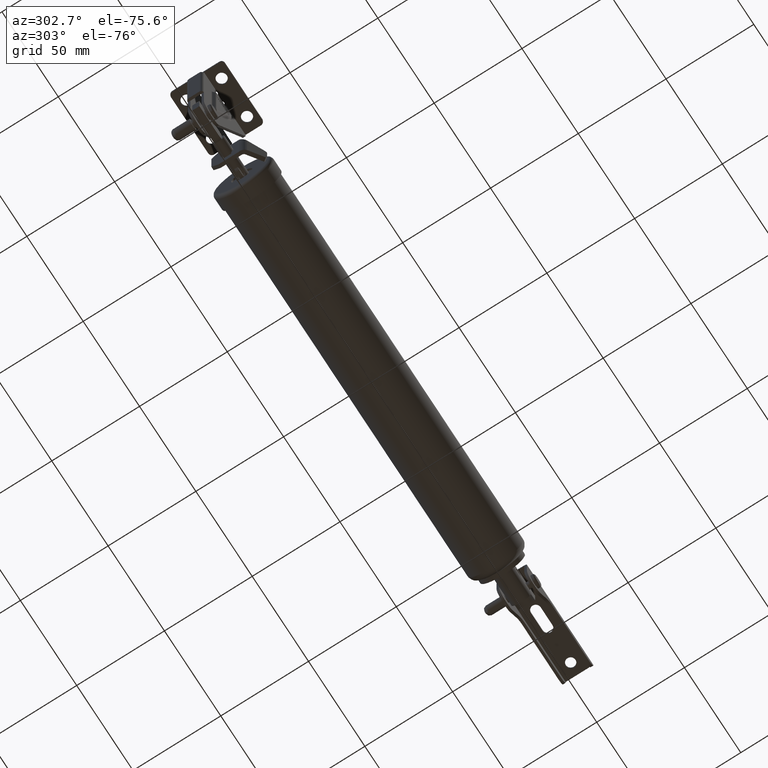
[diagram: clean part render]
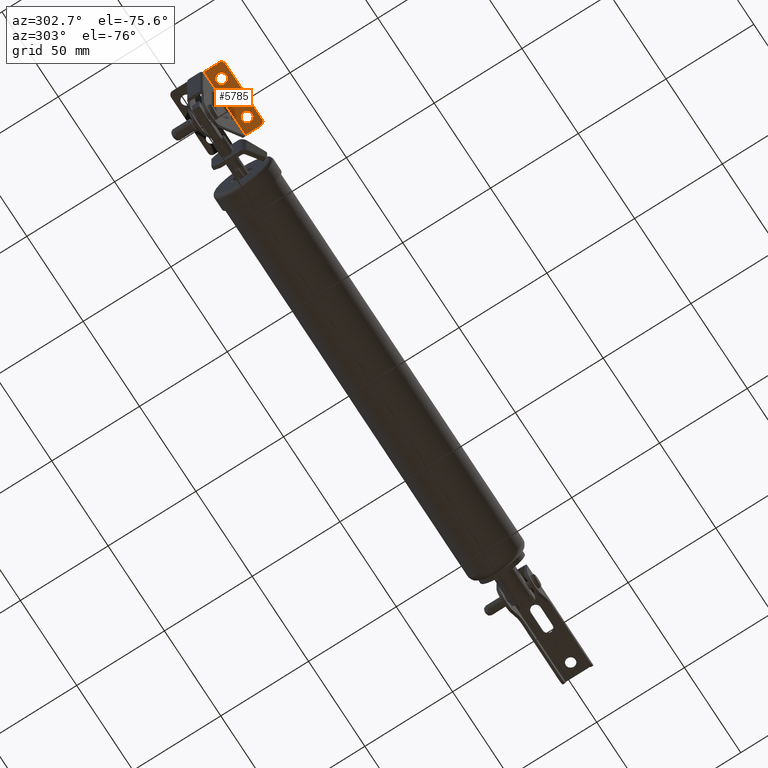
[diagram: same view with one face highlighted and labeled with its STEP entity id]
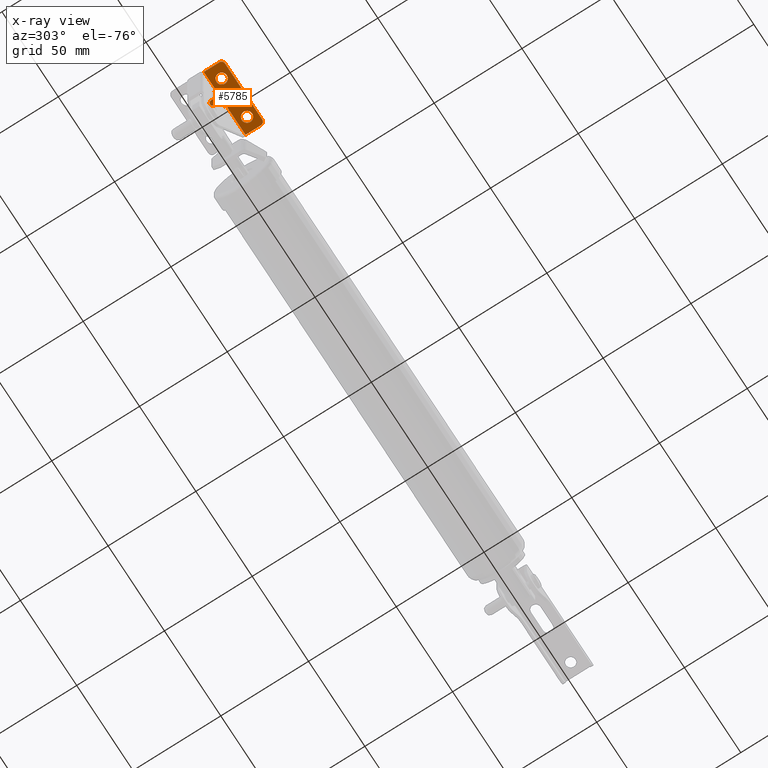
[diagram: x-ray of the same camera — body ghosted, the highlighted face saturated]
A machine part, auxiliary view. The second image highlights one B-rep face of the part: STEP entity #5785.
The next image is the same camera in x-ray: the body ghosted, the highlighted face saturated — about 1% of this face is hidden behind the body in this view.
In plain terms, the highlighted planar face has unit normal (0, 0, -1).
Its self-contained STEP definition (entity closure, byte-faithful):
#127=B_SPLINE_CURVE_WITH_KNOTS('',3,(#9270,#9271,#9272,#9273,#9274,#9275,
#9276),.UNSPECIFIED.,.F.,.F.,(4,3,4),(-0.233721511252047,-0.134987609549721,
0.),.UNSPECIFIED.);
#353=LINE('',#9022,#832);
#356=LINE('',#9030,#835);
#402=LINE('',#9251,#881);
#403=LINE('',#9254,#882);
#404=LINE('',#9256,#883);
#405=LINE('',#9262,#884);
#406=LINE('',#9266,#885);
#407=LINE('',#9277,#886);
#408=LINE('',#9278,#887);
#832=VECTOR('',#7282,17.4);
#835=VECTOR('',#7287,10.7);
#881=VECTOR('',#7441,33.);
#882=VECTOR('',#7444,8.8);
#883=VECTOR('',#7445,1.49999999705108);
#884=VECTOR('',#7450,3.2);
#885=VECTOR('',#7453,3.2);
#886=VECTOR('',#7456,1.5);
#887=VECTOR('',#7457,8.8);
#1300=PLANE('',#6329);
#1482=FACE_BOUND('',#2078,.T.);
#1483=FACE_BOUND('',#2079,.T.);
#1664=FACE_OUTER_BOUND('',#2077,.T.);
#2077=EDGE_LOOP('',(#4558,#4559,#4560,#4561,#4562,#4563,#4564,#4565,#4566,
#4567,#4568,#4569,#4570,#4571,#4572,#4573));
#2078=EDGE_LOOP('',(#4574));
#2079=EDGE_LOOP('',(#4575));
#2382=CIRCLE('',#6196,2.95);
#2384=CIRCLE('',#6199,2.95);
#2462=CIRCLE('',#6327,1.99999999999999);
#2464=CIRCLE('',#6330,2.);
#2465=CIRCLE('',#6331,1.5);
#2466=CIRCLE('',#6332,1.49999999999999);
#2467=CIRCLE('',#6333,1.5);
#2468=CIRCLE('',#6334,1.5);
#2667=VERTEX_POINT('',#8769);
#2669=VERTEX_POINT('',#8774);
#2741=VERTEX_POINT('',#9019);
#2742=VERTEX_POINT('',#9021);
#2745=VERTEX_POINT('',#9027);
#2746=VERTEX_POINT('',#9029);
#2807=VERTEX_POINT('',#9241);
#2808=VERTEX_POINT('',#9242);
#2811=VERTEX_POINT('',#9250);
#2812=VERTEX_POINT('',#9252);
#2813=VERTEX_POINT('',#9255);
#2814=VERTEX_POINT('',#9257);
#2815=VERTEX_POINT('',#9259);
#2816=VERTEX_POINT('',#9261);
#2817=VERTEX_POINT('',#9263);
#2818=VERTEX_POINT('',#9265);
#2819=VERTEX_POINT('',#9267);
#2820=VERTEX_POINT('',#9269);
#3265=EDGE_CURVE('',#2667,#2667,#2382,.T.);
#3267=EDGE_CURVE('',#2669,#2669,#2384,.T.);
#3365=EDGE_CURVE('',#2742,#2741,#353,.T.);
#3369=EDGE_CURVE('',#2746,#2745,#356,.T.);
#3448=EDGE_CURVE('',#2807,#2808,#2462,.T.);
#3452=EDGE_CURVE('',#2807,#2811,#402,.T.);
#3453=EDGE_CURVE('',#2811,#2812,#2464,.T.);
#3454=EDGE_CURVE('',#2812,#2746,#403,.T.);
#3455=EDGE_CURVE('',#2745,#2813,#404,.T.);
#3456=EDGE_CURVE('',#2813,#2814,#2465,.T.);
#3457=EDGE_CURVE('',#2814,#2815,#2466,.T.);
#3458=EDGE_CURVE('',#2815,#2816,#405,.T.);
#3459=EDGE_CURVE('',#2816,#2817,#2467,.T.);
#3460=EDGE_CURVE('',#2817,#2818,#406,.T.);
#3461=EDGE_CURVE('',#2818,#2819,#2468,.T.);
#3462=EDGE_CURVE('',#2819,#2820,#127,.T.);
#3463=EDGE_CURVE('',#2820,#2742,#407,.T.);
#3464=EDGE_CURVE('',#2741,#2808,#408,.T.);
#4558=ORIENTED_EDGE('',*,*,#3448,.F.);
#4559=ORIENTED_EDGE('',*,*,#3452,.T.);
#4560=ORIENTED_EDGE('',*,*,#3453,.T.);
#4561=ORIENTED_EDGE('',*,*,#3454,.T.);
#4562=ORIENTED_EDGE('',*,*,#3369,.T.);
#4563=ORIENTED_EDGE('',*,*,#3455,.T.);
#4564=ORIENTED_EDGE('',*,*,#3456,.T.);
#4565=ORIENTED_EDGE('',*,*,#3457,.T.);
#4566=ORIENTED_EDGE('',*,*,#3458,.T.);
#4567=ORIENTED_EDGE('',*,*,#3459,.T.);
#4568=ORIENTED_EDGE('',*,*,#3460,.T.);
#4569=ORIENTED_EDGE('',*,*,#3461,.T.);
#4570=ORIENTED_EDGE('',*,*,#3462,.T.);
#4571=ORIENTED_EDGE('',*,*,#3463,.T.);
#4572=ORIENTED_EDGE('',*,*,#3365,.T.);
#4573=ORIENTED_EDGE('',*,*,#3464,.T.);
#4574=ORIENTED_EDGE('',*,*,#3265,.T.);
#4575=ORIENTED_EDGE('',*,*,#3267,.T.);
#5785=ADVANCED_FACE('',(#1664,#1482,#1483),#1300,.T.);
#6196=AXIS2_PLACEMENT_3D('',#8770,#7076,#7077);
#6199=AXIS2_PLACEMENT_3D('',#8775,#7082,#7083);
#6327=AXIS2_PLACEMENT_3D('',#9243,#7433,#7434);
#6329=AXIS2_PLACEMENT_3D('',#9249,#7439,#7440);
#6330=AXIS2_PLACEMENT_3D('',#9253,#7442,#7443);
#6331=AXIS2_PLACEMENT_3D('',#9258,#7446,#7447);
#6332=AXIS2_PLACEMENT_3D('',#9260,#7448,#7449);
#6333=AXIS2_PLACEMENT_3D('',#9264,#7451,#7452);
#6334=AXIS2_PLACEMENT_3D('',#9268,#7454,#7455);
#7076=DIRECTION('center_axis',(0.,-1.,0.));
#7077=DIRECTION('ref_axis',(-1.,0.,0.));
#7082=DIRECTION('center_axis',(0.,-1.,0.));
#7083=DIRECTION('ref_axis',(-1.,0.,0.));
#7282=DIRECTION('',(0.,0.,1.));
#7287=DIRECTION('',(0.,0.,1.));
#7433=DIRECTION('center_axis',(0.,-1.,0.));
#7434=DIRECTION('ref_axis',(-3.33066907387548E-15,0.,1.));
#7439=DIRECTION('center_axis',(0.,1.,0.));
#7440=DIRECTION('ref_axis',(0.,0.,-1.));
#7441=DIRECTION('',(0.,0.,-1.));
#7442=DIRECTION('center_axis',(0.,1.,0.));
#7443=DIRECTION('ref_axis',(0.,0.,-1.));
#7444=DIRECTION('',(-1.,0.,0.));
#7445=DIRECTION('',(-1.,0.,0.));
#7446=DIRECTION('center_axis',(5.85329612509157E-14,-1.,-6.05311513822821E-14));
#7447=DIRECTION('ref_axis',(0.999444290037663,6.05181389472996E-14,-0.0333333333333326));
#7448=DIRECTION('center_axis',(0.,-1.,0.));
#7449=DIRECTION('ref_axis',(-2.96059473233376E-15,0.,1.));
#7450=DIRECTION('',(-1.,0.,0.));
#7451=DIRECTION('center_axis',(-7.10542735760099E-14,1.,0.));
#7452=DIRECTION('ref_axis',(1.38777878078145E-15,9.86076131526266E-29,1.));
#7453=DIRECTION('',(1.,0.,-2.77555756156289E-15));
#7454=DIRECTION('center_axis',(-5.78608230768047E-14,-1.,5.88333456675078E-14));
#7455=DIRECTION('ref_axis',(0.999861100423948,-5.88333456675079E-14,-0.016666729103596));
#7456=DIRECTION('',(1.,0.,0.));
#7457=DIRECTION('',(1.,0.,0.));
#8769=CARTESIAN_POINT('',(12.95,-204.5,22.85));
#8770=CARTESIAN_POINT('Origin',(10.,-204.5,22.85));
#8774=CARTESIAN_POINT('',(12.95,-204.5,0.350000000000011));
#8775=CARTESIAN_POINT('Origin',(10.,-204.5,0.35000000000001));
#9019=CARTESIAN_POINT('',(4.6,-204.5,30.));
#9021=CARTESIAN_POINT('',(4.6,-204.5,12.6));
#9022=CARTESIAN_POINT('',(4.6,-204.5,12.6));
#9027=CARTESIAN_POINT('',(4.6,-204.5,3.70000000000001));
#9029=CARTESIAN_POINT('',(4.6,-204.5,-6.99999999999999));
#9030=CARTESIAN_POINT('',(4.6,-204.5,-6.99999999999999));
#9241=CARTESIAN_POINT('',(15.4,-204.5,28.));
#9242=CARTESIAN_POINT('',(13.4,-204.5,30.));
#9243=CARTESIAN_POINT('Origin',(13.4,-204.5,28.));
#9249=CARTESIAN_POINT('Origin',(17.22,-204.5,33.82));
#9250=CARTESIAN_POINT('',(15.4,-204.5,-4.99999999999999));
#9251=CARTESIAN_POINT('',(15.4,-204.5,28.));
#9252=CARTESIAN_POINT('',(13.4,-204.5,-6.99999999999999));
#9253=CARTESIAN_POINT('Origin',(13.4,-204.5,-4.99999999999999));
#9254=CARTESIAN_POINT('',(13.4,-204.5,-6.99999999999999));
#9255=CARTESIAN_POINT('',(3.10000000294892,-204.5,3.70000011580109));
#9256=CARTESIAN_POINT('',(4.6,-204.5,3.70000000000001));
#9257=CARTESIAN_POINT('',(4.6,-204.5,5.15000000000001));
#9258=CARTESIAN_POINT('Origin',(3.10083356494351,-204.5,5.20000000000001));
#9259=CARTESIAN_POINT('',(3.1,-204.5,6.65000000000001));
#9260=CARTESIAN_POINT('Origin',(3.1,-204.5,5.15000000000002));
#9261=CARTESIAN_POINT('',(-0.0999999999999998,-204.5,6.65000000000001));
#9262=CARTESIAN_POINT('',(3.1,-204.5,6.65000000000001));
#9263=CARTESIAN_POINT('',(-0.0999999999999999,-204.5,9.65000000000001));
#9264=CARTESIAN_POINT('Origin',(-0.100000000000002,-204.5,8.15000000000001));
#9265=CARTESIAN_POINT('',(3.1,-204.5,9.65));
#9266=CARTESIAN_POINT('',(-0.0999999999999999,-204.5,9.65000000000001));
#9267=CARTESIAN_POINT('',(4.5997879601063,-204.5,11.1249990933513));
#9268=CARTESIAN_POINT('Origin',(3.1,-204.5,11.15));
#9269=CARTESIAN_POINT('',(3.1,-204.5,12.6));
#9270=CARTESIAN_POINT('Ctrl Pts',(4.59978426970488,-204.5,11.1249998624717));
#9271=CARTESIAN_POINT('Ctrl Pts',(4.59412388464545,-204.5,11.453250934005));
#9272=CARTESIAN_POINT('Ctrl Pts',(4.47727300779102,-204.5,11.7802693659941));
#9273=CARTESIAN_POINT('Ctrl Pts',(4.27260194891986,-204.5,12.0356406378883));
#9274=CARTESIAN_POINT('Ctrl Pts',(3.99277853968881,-204.5,12.384780669289));
#9275=CARTESIAN_POINT('Ctrl Pts',(3.54879944412351,-204.5,12.6));
#9276=CARTESIAN_POINT('Ctrl Pts',(3.1,-204.5,12.6));
#9277=CARTESIAN_POINT('',(3.1,-204.5,12.6));
#9278=CARTESIAN_POINT('',(4.6,-204.5,30.));